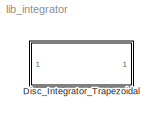
MODEL lib_integrator
KIND library
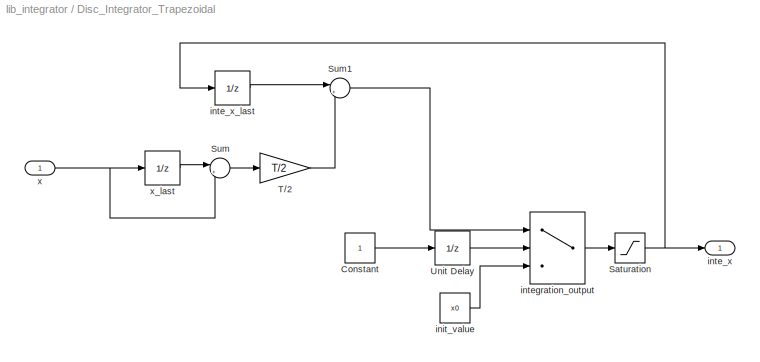
BLOCK [SubSystem] Disc_Integrator_Trapezoidal
  FunctionWithSeparateData = off
  MaskCallbackString = |||
  MaskEnableString = on,on,on,on
  MaskHideContents = off
  MaskIconFrame = on
  MaskIconOpaque = on
  MaskIconRotate = none
  MaskIconUnits = autoscale
  MaskPortRotate = default
  MaskPromptString = Initial value|Sample time|Upper saturation limit|Lower saturation limit
  MaskStyleString = edit,edit,edit,edit
  MaskToolTipString = on,on,on,on
  MaskTunableValueString = on,on,on,on
  MaskValueString = v0|T_veh|v_max|0
  MaskVariables = x0=@1;T=@2;upp_limit=@3;low_limit=@4;
  MaskVisibilityString = on,on,on,on
  MinAlgLoopOccurrences = off
  Opaque = off
  Ports = [1, 1]
  PropExecContextOutsideSubsystem = off
  RTWSystemCode = Auto
  RequestExecContextInheritance = off
  SID = 1
BLOCK [Constant] Disc_Integrator_Trapezoidal/Constant
  OutDataTypeStr = boolean
  SID = 7
BLOCK [Saturate] Disc_Integrator_Trapezoidal/Saturation
  InputPortMap = u0
  LowerLimit = low_limit
  Ports = [1, 1]
  SID = 13
  UpperLimit = upp_limit
BLOCK [Sum] Disc_Integrator_Trapezoidal/Sum
  IconShape = round
  InputSameDT = off
  Inputs = |++
  OutDataTypeStr = Inherit: Inherit via internal rule
  Ports = [2, 1]
  SID = 10
  SaturateOnIntegerOverflow = off
BLOCK [Sum] Disc_Integrator_Trapezoidal/Sum1
  IconShape = round
  InputSameDT = off
  Inputs = |++
  OutDataTypeStr = Inherit: Inherit via internal rule
  Ports = [2, 1]
  SID = 12
  SaturateOnIntegerOverflow = off
BLOCK [Gain] Disc_Integrator_Trapezoidal/T//2
  Gain = T/2
  OutDataTypeStr = Inherit: Inherit via internal rule
  ParamDataTypeStr = Inherit: Inherit via internal rule
  SID = 11
  SaturateOnIntegerOverflow = off
BLOCK [UnitDelay] Disc_Integrator_Trapezoidal/Unit Delay
  InputProcessing = Elements as channels (sample based)
  SID = 6
  SampleTime = -1
BLOCK [Constant] Disc_Integrator_Trapezoidal/init_value
  SID = 5
  Value = x0
BLOCK [Outport] Disc_Integrator_Trapezoidal/inte_x
  IconDisplay = Port number
  SID = 3
BLOCK [UnitDelay] Disc_Integrator_Trapezoidal/inte_x_last
  InputProcessing = Elements as channels (sample based)
  SID = 8
  SampleTime = -1
BLOCK [Switch] Disc_Integrator_Trapezoidal/integration_output
  Criteria = u2 > Threshold
  InputSameDT = off
  SID = 4
  SaturateOnIntegerOverflow = off
BLOCK [Inport] Disc_Integrator_Trapezoidal/x
  IconDisplay = Port number
  SID = 2
BLOCK [UnitDelay] Disc_Integrator_Trapezoidal/x_last
  InputProcessing = Elements as channels (sample based)
  SID = 9
  SampleTime = -1
LINE Disc_Integrator_Trapezoidal/Constant:1 -> Disc_Integrator_Trapezoidal/Unit Delay:1
NET Disc_Integrator_Trapezoidal/Saturation:1 -> Disc_Integrator_Trapezoidal/inte_x:1, Disc_Integrator_Trapezoidal/inte_x_last:1
LINE Disc_Integrator_Trapezoidal/Sum1:1 -> Disc_Integrator_Trapezoidal/integration_output:1
LINE Disc_Integrator_Trapezoidal/Sum:1 -> Disc_Integrator_Trapezoidal/T//2:1
LINE Disc_Integrator_Trapezoidal/T//2:1 -> Disc_Integrator_Trapezoidal/Sum1:2
LINE Disc_Integrator_Trapezoidal/Unit Delay:1 -> Disc_Integrator_Trapezoidal/integration_output:2
LINE Disc_Integrator_Trapezoidal/init_value:1 -> Disc_Integrator_Trapezoidal/integration_output:3
LINE Disc_Integrator_Trapezoidal/inte_x_last:1 -> Disc_Integrator_Trapezoidal/Sum1:1
LINE Disc_Integrator_Trapezoidal/integration_output:1 -> Disc_Integrator_Trapezoidal/Saturation:1
NET Disc_Integrator_Trapezoidal/x:1 -> Disc_Integrator_Trapezoidal/Sum:2, Disc_Integrator_Trapezoidal/x_last:1
LINE Disc_Integrator_Trapezoidal/x_last:1 -> Disc_Integrator_Trapezoidal/Sum:1
note: NET lines group one-source signal fan-out (src -> all destinations, sorted); 1:1 wires keep LINE
